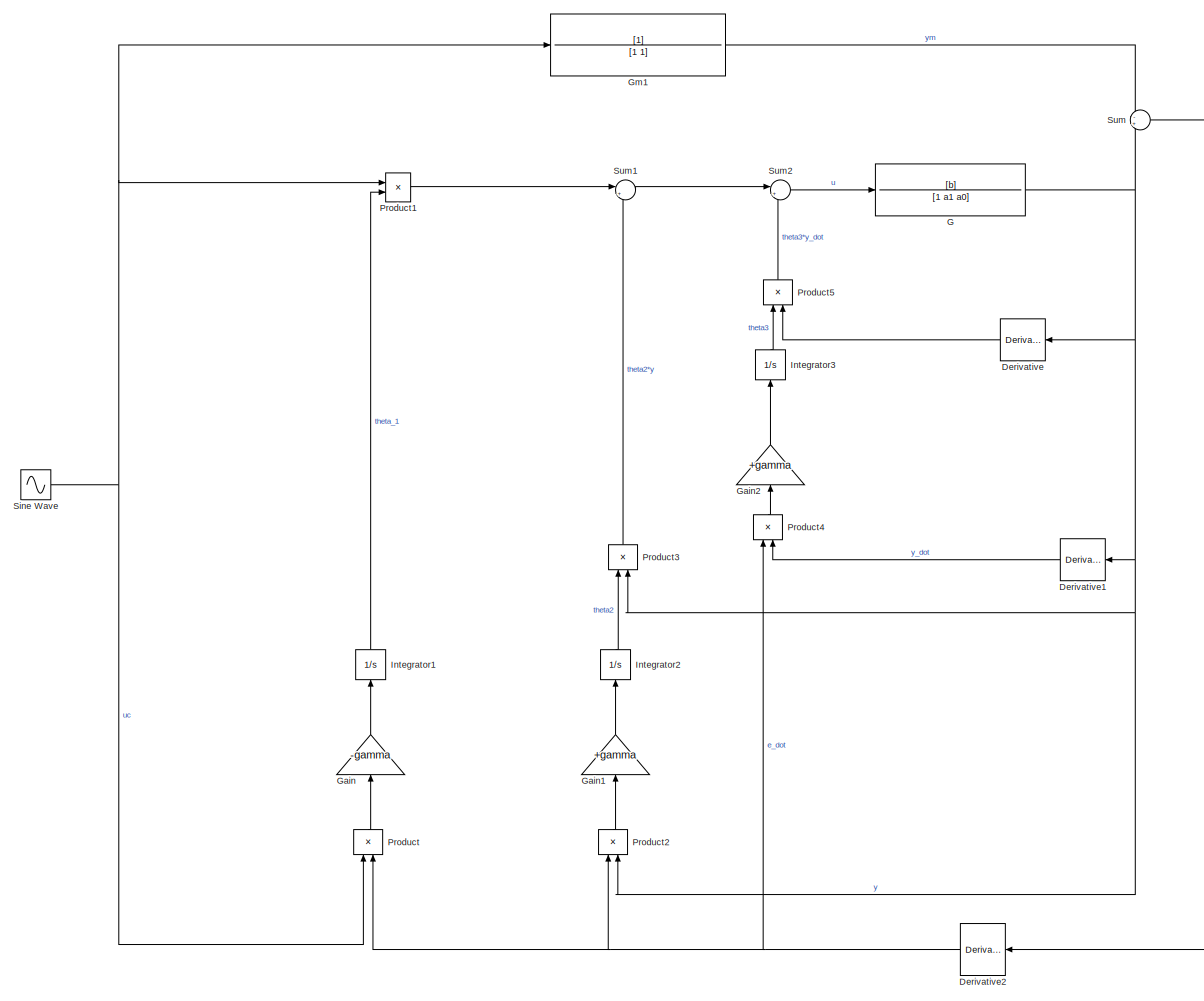
[diagram: root canvas - part 1/2, most of the canvas]
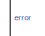
[diagram: root canvas - part 2/2, middle right region]
MODEL slx_e0abea81a917
KIND model
CONFIG AbsTol = auto
CONFIG EnableMultiTasking = off
CONFIG FixedStep = auto
CONFIG MaxStep = auto
CONFIG MinStep = auto
CONFIG RelTol = 1e-3
CONFIG SampleTimeConstraint = Unconstrained
CONFIG SolverName = VariableStepAuto
CONFIG StartTime = 0.0
CONFIG StopTime = 1000
BLOCK [Derivative] Derivative
  NameLocation = top
BLOCK [Derivative] Derivative1
  NameLocation = top
BLOCK [Derivative] Derivative2
  NameLocation = top
BLOCK [TransferFcn] G
  Denominator = [1 a1 a0]
  Numerator = [b]
BLOCK [Gain] Gain
  Gain = -gamma
  NameLocation = right
BLOCK [Gain] Gain1
  Gain = +gamma
  NameLocation = right
BLOCK [Gain] Gain2
  Gain = +gamma
  NameLocation = right
BLOCK [TransferFcn] Gm1
BLOCK [Integrator] Integrator1
  NameLocation = right
  Ports = [1, 1]
BLOCK [Integrator] Integrator2
  NameLocation = right
  Ports = [1, 1]
BLOCK [Integrator] Integrator3
  NameLocation = right
  Ports = [1, 1]
BLOCK [Product] Product
  NameLocation = right
  Ports = [2, 1]
BLOCK [Product] Product1
  Ports = [2, 1]
BLOCK [Product] Product2
  NameLocation = right
  Ports = [2, 1]
BLOCK [Product] Product3
  NameLocation = right
  Ports = [2, 1]
BLOCK [Product] Product4
  NameLocation = right
  Ports = [2, 1]
BLOCK [Product] Product5
  NameLocation = right
  Ports = [2, 1]
BLOCK [Sin] Sine Wave
  Frequency = 0.1
  Ports = [0, 1]
  SampleTime = 0
BLOCK [Sum] Sum
  Inputs = -+
  Ports = [2, 1]
BLOCK [Sum] Sum1
  Inputs = |+-
  Ports = [2, 1]
BLOCK [Sum] Sum2
  Inputs = |+-
  Ports = [2, 1]
LINE Derivative1:1 -> Product4:2
NET Derivative2:1 -> Product2:1, Product4:1, Product:2
LINE Derivative:1 -> Product5:2
NET G:1 -> Derivative1:1, Derivative:1, Product2:2, Product3:2, Sum:2
LINE Gain1:1 -> Integrator2:1
LINE Gain2:1 -> Integrator3:1
LINE Gain:1 -> Integrator1:1
LINE Gm1:1 -> Sum:1
LINE Integrator1:1 -> Product1:2
LINE Integrator2:1 -> Product3:1
LINE Integrator3:1 -> Product5:1
LINE Product1:1 -> Sum1:1
LINE Product2:1 -> Gain1:1
LINE Product3:1 -> Sum1:2
LINE Product4:1 -> Gain2:1
LINE Product5:1 -> Sum2:2
LINE Product:1 -> Gain:1
NET Sine Wave:1 -> Gm1:1, Product1:1, Product:1
LINE Sum1:1 -> Sum2:1
LINE Sum2:1 -> G:1
LINE Sum:1 -> Derivative2:1
note: NET lines group one-source signal fan-out (src -> all destinations, sorted); 1:1 wires keep LINE
